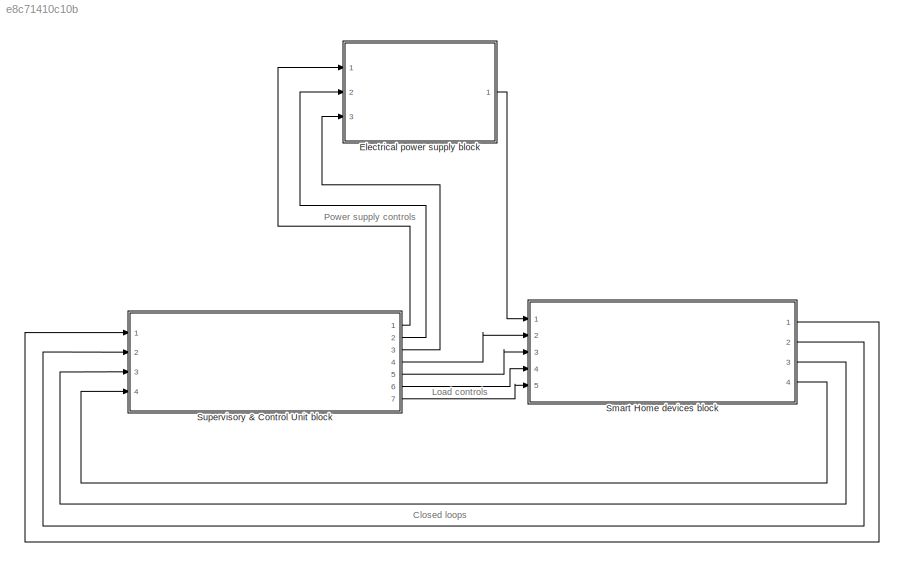
MODEL slx_e8c71410c10b
KIND model
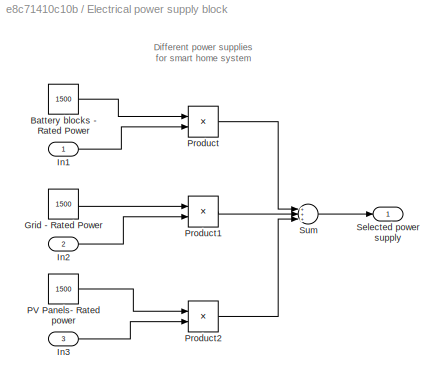
BLOCK [SubSystem] Electrical power supply block
  Ports = [3, 1]
  RequestExecContextInheritance = off
BLOCK [Constant] Electrical power supply block/Battery blocks - Rated Power
  Value = 1500
BLOCK [Constant] Electrical power supply block/Grid - Rated Power
  Value = 1500
BLOCK [Inport] Electrical power supply block/In1
  IconDisplay = Port number
BLOCK [Inport] Electrical power supply block/In2
  IconDisplay = Port number
  Port = 2
BLOCK [Inport] Electrical power supply block/In3
  IconDisplay = Port number
  Port = 3
BLOCK [Constant] Electrical power supply block/PV Panels- Rated power
  Value = 1500
BLOCK [Product] Electrical power supply block/Product
  InputSameDT = off
  OutDataTypeStr = Inherit: Inherit via internal rule
  Ports = [2, 1]
  RndMeth = Floor
  SaturateOnIntegerOverflow = off
BLOCK [Product] Electrical power supply block/Product1
  InputSameDT = off
  OutDataTypeStr = Inherit: Inherit via internal rule
  Ports = [2, 1]
  RndMeth = Floor
  SaturateOnIntegerOverflow = off
BLOCK [Product] Electrical power supply block/Product2
  InputSameDT = off
  OutDataTypeStr = Inherit: Inherit via internal rule
  Ports = [2, 1]
  RndMeth = Floor
  SaturateOnIntegerOverflow = off
BLOCK [Outport] Electrical power supply block/Selected power supply
  IconDisplay = Port number
BLOCK [Sum] Electrical power supply block/Sum
  InputSameDT = off
  Inputs = +++
  OutDataTypeStr = Inherit: Inherit via internal rule
  Ports = [3, 1]
  SaturateOnIntegerOverflow = off
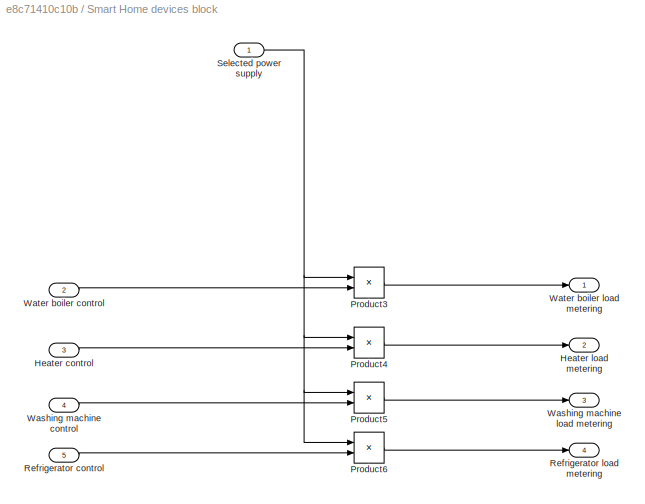
BLOCK [SubSystem] Smart Home devices block
  Ports = [5, 4]
  RequestExecContextInheritance = off
BLOCK [Inport] Smart Home devices block/Heater control
  IconDisplay = Port number
  Port = 3
BLOCK [Outport] Smart Home devices block/Heater load metering
  IconDisplay = Port number
  Port = 2
BLOCK [Product] Smart Home devices block/Product3
  InputSameDT = off
  OutDataTypeStr = Inherit: Inherit via internal rule
  Ports = [2, 1]
  RndMeth = Floor
  SaturateOnIntegerOverflow = off
BLOCK [Product] Smart Home devices block/Product4
  InputSameDT = off
  OutDataTypeStr = Inherit: Inherit via internal rule
  Ports = [2, 1]
  RndMeth = Floor
  SaturateOnIntegerOverflow = off
BLOCK [Product] Smart Home devices block/Product5
  InputSameDT = off
  OutDataTypeStr = Inherit: Inherit via internal rule
  Ports = [2, 1]
  RndMeth = Floor
  SaturateOnIntegerOverflow = off
BLOCK [Product] Smart Home devices block/Product6
  InputSameDT = off
  OutDataTypeStr = Inherit: Inherit via internal rule
  Ports = [2, 1]
  RndMeth = Floor
  SaturateOnIntegerOverflow = off
BLOCK [Inport] Smart Home devices block/Refrigerator control
  IconDisplay = Port number
  Port = 5
BLOCK [Outport] Smart Home devices block/Refrigerator load metering
  IconDisplay = Port number
  Port = 4
BLOCK [Inport] Smart Home devices block/Selected power supply
  IconDisplay = Port number
BLOCK [Inport] Smart Home devices block/Washing machine control
  IconDisplay = Port number
  Port = 4
BLOCK [Outport] Smart Home devices block/Washing machine load metering
  IconDisplay = Port number
  Port = 3
BLOCK [Inport] Smart Home devices block/Water boiler control
  IconDisplay = Port number
  Port = 2
BLOCK [Outport] Smart Home devices block/Water boiler load metering
  IconDisplay = Port number
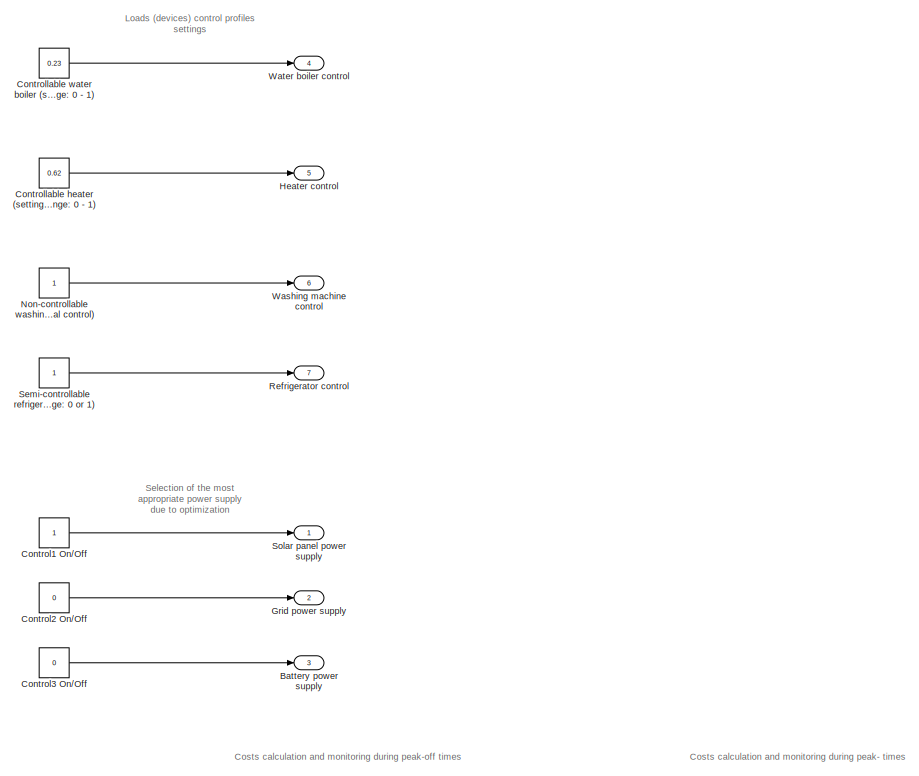
[diagram: Supervisory & Control Unit block - part 1/2, full width, top band]
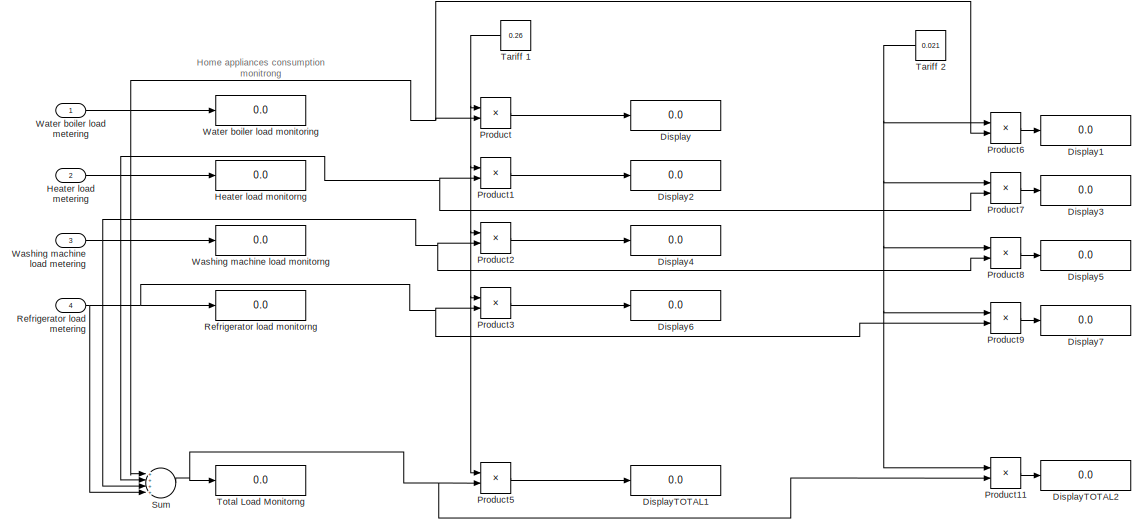
[diagram: Supervisory & Control Unit block - part 2/2, full width, bottom band]
BLOCK [SubSystem] Supervisory & Control Unit block
  Ports = [4, 7]
  RequestExecContextInheritance = off
BLOCK [Outport] Supervisory & Control Unit block/Battery power supply
  IconDisplay = Port number
  Port = 3
BLOCK [Constant] Supervisory & Control Unit block/Control1 On//Off
BLOCK [Constant] Supervisory & Control Unit block/Control2 On//Off
  Value = 0
BLOCK [Constant] Supervisory & Control Unit block/Control3 On//Off
  Value = 0
BLOCK [Constant] Supervisory & Control Unit block/Controllable heater (setting control parameter range: 0 - 1)
  Value = 0.62
BLOCK [Constant] Supervisory & Control Unit block/Controllable water boiler (setting control parameter range: 0 - 1) 
  Value = 0.23
BLOCK [Display] Supervisory & Control Unit block/Display
  Decimation = 1
  Ports = [1]
BLOCK [Display] Supervisory & Control Unit block/Display1
  Decimation = 1
  Ports = [1]
BLOCK [Display] Supervisory & Control Unit block/Display2
  Decimation = 1
  Ports = [1]
BLOCK [Display] Supervisory & Control Unit block/Display3
  Decimation = 1
  Ports = [1]
BLOCK [Display] Supervisory & Control Unit block/Display4
  Decimation = 1
  Ports = [1]
BLOCK [Display] Supervisory & Control Unit block/Display5
  Decimation = 1
  Ports = [1]
BLOCK [Display] Supervisory & Control Unit block/Display6
  Decimation = 1
  Ports = [1]
BLOCK [Display] Supervisory & Control Unit block/Display7
  Decimation = 1
  Ports = [1]
BLOCK [Display] Supervisory & Control Unit block/DisplayTOTAL1
  Decimation = 1
  Ports = [1]
BLOCK [Display] Supervisory & Control Unit block/DisplayTOTAL2
  Decimation = 1
  Ports = [1]
BLOCK [Outport] Supervisory & Control Unit block/Grid power supply
  IconDisplay = Port number
  Port = 2
BLOCK [Outport] Supervisory & Control Unit block/Heater control
  IconDisplay = Port number
  Port = 5
BLOCK [Inport] Supervisory & Control Unit block/Heater load metering
  IconDisplay = Port number
  Port = 2
BLOCK [Display] Supervisory & Control Unit block/Heater load monitorng
  Decimation = 1
  Ports = [1]
BLOCK [Constant] Supervisory & Control Unit block/Non-controllable washing machine (depending on the manual control)
BLOCK [Product] Supervisory & Control Unit block/Product
  InputSameDT = off
  OutDataTypeStr = Inherit: Inherit via internal rule
  Ports = [2, 1]
  RndMeth = Floor
  SaturateOnIntegerOverflow = off
BLOCK [Product] Supervisory & Control Unit block/Product1
  InputSameDT = off
  OutDataTypeStr = Inherit: Inherit via internal rule
  Ports = [2, 1]
  RndMeth = Floor
  SaturateOnIntegerOverflow = off
BLOCK [Product] Supervisory & Control Unit block/Product11
  InputSameDT = off
  OutDataTypeStr = Inherit: Inherit via internal rule
  Ports = [2, 1]
  RndMeth = Floor
  SaturateOnIntegerOverflow = off
BLOCK [Product] Supervisory & Control Unit block/Product2
  InputSameDT = off
  OutDataTypeStr = Inherit: Inherit via internal rule
  Ports = [2, 1]
  RndMeth = Floor
  SaturateOnIntegerOverflow = off
BLOCK [Product] Supervisory & Control Unit block/Product3
  InputSameDT = off
  OutDataTypeStr = Inherit: Inherit via internal rule
  Ports = [2, 1]
  RndMeth = Floor
  SaturateOnIntegerOverflow = off
BLOCK [Product] Supervisory & Control Unit block/Product5
  InputSameDT = off
  OutDataTypeStr = Inherit: Inherit via internal rule
  Ports = [2, 1]
  RndMeth = Floor
  SaturateOnIntegerOverflow = off
BLOCK [Product] Supervisory & Control Unit block/Product6
  InputSameDT = off
  OutDataTypeStr = Inherit: Inherit via internal rule
  Ports = [2, 1]
  RndMeth = Floor
  SaturateOnIntegerOverflow = off
BLOCK [Product] Supervisory & Control Unit block/Product7
  InputSameDT = off
  OutDataTypeStr = Inherit: Inherit via internal rule
  Ports = [2, 1]
  RndMeth = Floor
  SaturateOnIntegerOverflow = off
BLOCK [Product] Supervisory & Control Unit block/Product8
  InputSameDT = off
  OutDataTypeStr = Inherit: Inherit via internal rule
  Ports = [2, 1]
  RndMeth = Floor
  SaturateOnIntegerOverflow = off
BLOCK [Product] Supervisory & Control Unit block/Product9
  InputSameDT = off
  OutDataTypeStr = Inherit: Inherit via internal rule
  Ports = [2, 1]
  RndMeth = Floor
  SaturateOnIntegerOverflow = off
BLOCK [Outport] Supervisory & Control Unit block/Refrigerator control
  IconDisplay = Port number
  Port = 7
BLOCK [Inport] Supervisory & Control Unit block/Refrigerator load metering
  IconDisplay = Port number
  Port = 4
BLOCK [Display] Supervisory & Control Unit block/Refrigerator load monitorng
  Decimation = 1
  Ports = [1]
BLOCK [Constant] Supervisory & Control Unit block/Semi-controllable refrigerator (setting control parameter range: 0 or 1)
BLOCK [Outport] Supervisory & Control Unit block/Solar panel power supply
  IconDisplay = Port number
BLOCK [Sum] Supervisory & Control Unit block/Sum
  InputSameDT = off
  Inputs = ++++
  OutDataTypeStr = Inherit: Inherit via internal rule
  Ports = [4, 1]
  SaturateOnIntegerOverflow = off
BLOCK [Constant] Supervisory & Control Unit block/Tariff 1
  Value = 0.26
BLOCK [Constant] Supervisory & Control Unit block/Tariff 2
  Value = 0.021
BLOCK [Display] Supervisory & Control Unit block/Total Load Monitorng
  Decimation = 1
  Ports = [1]
BLOCK [Outport] Supervisory & Control Unit block/Washing machine control
  IconDisplay = Port number
  Port = 6
BLOCK [Inport] Supervisory & Control Unit block/Washing machine load metering
  IconDisplay = Port number
  Port = 3
BLOCK [Display] Supervisory & Control Unit block/Washing machine load monitorng
  Decimation = 1
  Ports = [1]
BLOCK [Outport] Supervisory & Control Unit block/Water boiler control
  IconDisplay = Port number
  Port = 4
BLOCK [Inport] Supervisory & Control Unit block/Water boiler load metering
  IconDisplay = Port number
BLOCK [Display] Supervisory & Control Unit block/Water boiler load monitoring
  Decimation = 1
  Ports = [1]
ANNOTATION (root): Closed loops
ANNOTATION (root): Load controls
ANNOTATION (root): Power supply controls
ANNOTATION Electrical power supply block: Different power supplies for smart home system
ANNOTATION Supervisory & Control Unit block: Loads (devices) control profiles settings
ANNOTATION Supervisory & Control Unit block: Selection of the most appropriate power supply due to optimization
ANNOTATION Supervisory & Control Unit block: Costs calculation and monitoring during peak- times
ANNOTATION Supervisory & Control Unit block: Costs calculation and monitoring during peak-off times
ANNOTATION Supervisory & Control Unit block: Home appliances consumption monitrong
LINE Electrical power supply block/Battery blocks - Rated Power:1 -> Electrical power supply block/Product:1
LINE Electrical power supply block/Grid - Rated Power:1 -> Electrical power supply block/Product1:1
LINE Electrical power supply block/In1:1 -> Electrical power supply block/Product:2
LINE Electrical power supply block/In2:1 -> Electrical power supply block/Product1:2
LINE Electrical power supply block/In3:1 -> Electrical power supply block/Product2:2
LINE Electrical power supply block/PV Panels- Rated power:1 -> Electrical power supply block/Product2:1
LINE Electrical power supply block/Product1:1 -> Electrical power supply block/Sum:2
LINE Electrical power supply block/Product2:1 -> Electrical power supply block/Sum:3
LINE Electrical power supply block/Product:1 -> Electrical power supply block/Sum:1
LINE Electrical power supply block/Sum:1 -> Electrical power supply block/Selected power supply:1
LINE Electrical power supply block:1 -> Smart Home devices block:1
LINE Smart Home devices block/Heater control:1 -> Smart Home devices block/Product4:2
LINE Smart Home devices block/Product3:1 -> Smart Home devices block/Water boiler load metering:1
LINE Smart Home devices block/Product4:1 -> Smart Home devices block/Heater load metering:1
LINE Smart Home devices block/Product5:1 -> Smart Home devices block/Washing machine load metering:1
LINE Smart Home devices block/Product6:1 -> Smart Home devices block/Refrigerator load metering:1
LINE Smart Home devices block/Refrigerator control:1 -> Smart Home devices block/Product6:2
NET Smart Home devices block/Selected power supply:1 -> Smart Home devices block/Product3:1, Smart Home devices block/Product4:1, Smart Home devices block/Product5:1, Smart Home devices block/Product6:1
LINE Smart Home devices block/Washing machine control:1 -> Smart Home devices block/Product5:2
LINE Smart Home devices block/Water boiler control:1 -> Smart Home devices block/Product3:2
LINE Smart Home devices block:1 -> Supervisory & Control Unit block:1
LINE Smart Home devices block:2 -> Supervisory & Control Unit block:2
LINE Smart Home devices block:3 -> Supervisory & Control Unit block:3
LINE Smart Home devices block:4 -> Supervisory & Control Unit block:4
LINE Supervisory & Control Unit block/Control1 On//Off:1 -> Supervisory & Control Unit block/Solar panel power supply:1
LINE Supervisory & Control Unit block/Control2 On//Off:1 -> Supervisory & Control Unit block/Grid power supply:1
LINE Supervisory & Control Unit block/Control3 On//Off:1 -> Supervisory & Control Unit block/Battery power supply:1
LINE Supervisory & Control Unit block/Controllable heater (setting control parameter range: 0 - 1):1 -> Supervisory & Control Unit block/Heater control:1
LINE Supervisory & Control Unit block/Controllable water boiler (setting control parameter range: 0 - 1) :1 -> Supervisory & Control Unit block/Water boiler control:1
NET Supervisory & Control Unit block/Heater load metering:1 -> Supervisory & Control Unit block/Heater load monitorng:1, Supervisory & Control Unit block/Product1:2, Supervisory & Control Unit block/Product7:2, Supervisory & Control Unit block/Sum:2
LINE Supervisory & Control Unit block/Non-controllable washing machine (depending on the manual control):1 -> Supervisory & Control Unit block/Washing machine control:1
LINE Supervisory & Control Unit block/Product11:1 -> Supervisory & Control Unit block/DisplayTOTAL2:1
LINE Supervisory & Control Unit block/Product1:1 -> Supervisory & Control Unit block/Display2:1
LINE Supervisory & Control Unit block/Product2:1 -> Supervisory & Control Unit block/Display4:1
LINE Supervisory & Control Unit block/Product3:1 -> Supervisory & Control Unit block/Display6:1
LINE Supervisory & Control Unit block/Product5:1 -> Supervisory & Control Unit block/DisplayTOTAL1:1
LINE Supervisory & Control Unit block/Product6:1 -> Supervisory & Control Unit block/Display1:1
LINE Supervisory & Control Unit block/Product7:1 -> Supervisory & Control Unit block/Display3:1
LINE Supervisory & Control Unit block/Product8:1 -> Supervisory & Control Unit block/Display5:1
LINE Supervisory & Control Unit block/Product9:1 -> Supervisory & Control Unit block/Display7:1
LINE Supervisory & Control Unit block/Product:1 -> Supervisory & Control Unit block/Display:1
NET Supervisory & Control Unit block/Refrigerator load metering:1 -> Supervisory & Control Unit block/Product3:2, Supervisory & Control Unit block/Product9:2, Supervisory & Control Unit block/Refrigerator load monitorng:1, Supervisory & Control Unit block/Sum:4
LINE Supervisory & Control Unit block/Semi-controllable refrigerator (setting control parameter range: 0 or 1):1 -> Supervisory & Control Unit block/Refrigerator control:1
NET Supervisory & Control Unit block/Sum:1 -> Supervisory & Control Unit block/Product11:2, Supervisory & Control Unit block/Product5:2, Supervisory & Control Unit block/Total Load Monitorng:1
NET Supervisory & Control Unit block/Tariff 1:1 -> Supervisory & Control Unit block/Product1:1, Supervisory & Control Unit block/Product2:1, Supervisory & Control Unit block/Product3:1, Supervisory & Control Unit block/Product5:1, Supervisory & Control Unit block/Product:1
NET Supervisory & Control Unit block/Tariff 2:1 -> Supervisory & Control Unit block/Product11:1, Supervisory & Control Unit block/Product6:1, Supervisory & Control Unit block/Product7:1, Supervisory & Control Unit block/Product8:1, Supervisory & Control Unit block/Product9:1
NET Supervisory & Control Unit block/Washing machine load metering:1 -> Supervisory & Control Unit block/Product2:2, Supervisory & Control Unit block/Product8:2, Supervisory & Control Unit block/Sum:3, Supervisory & Control Unit block/Washing machine load monitorng:1
NET Supervisory & Control Unit block/Water boiler load metering:1 -> Supervisory & Control Unit block/Product6:2, Supervisory & Control Unit block/Product:2, Supervisory & Control Unit block/Sum:1, Supervisory & Control Unit block/Water boiler load monitoring:1
LINE Supervisory & Control Unit block:1 -> Electrical power supply block:1
LINE Supervisory & Control Unit block:2 -> Electrical power supply block:2
LINE Supervisory & Control Unit block:3 -> Electrical power supply block:3
LINE Supervisory & Control Unit block:4 -> Smart Home devices block:2
LINE Supervisory & Control Unit block:5 -> Smart Home devices block:3
LINE Supervisory & Control Unit block:6 -> Smart Home devices block:4
LINE Supervisory & Control Unit block:7 -> Smart Home devices block:5
note: NET lines group one-source signal fan-out (src -> all destinations, sorted); 1:1 wires keep LINE
